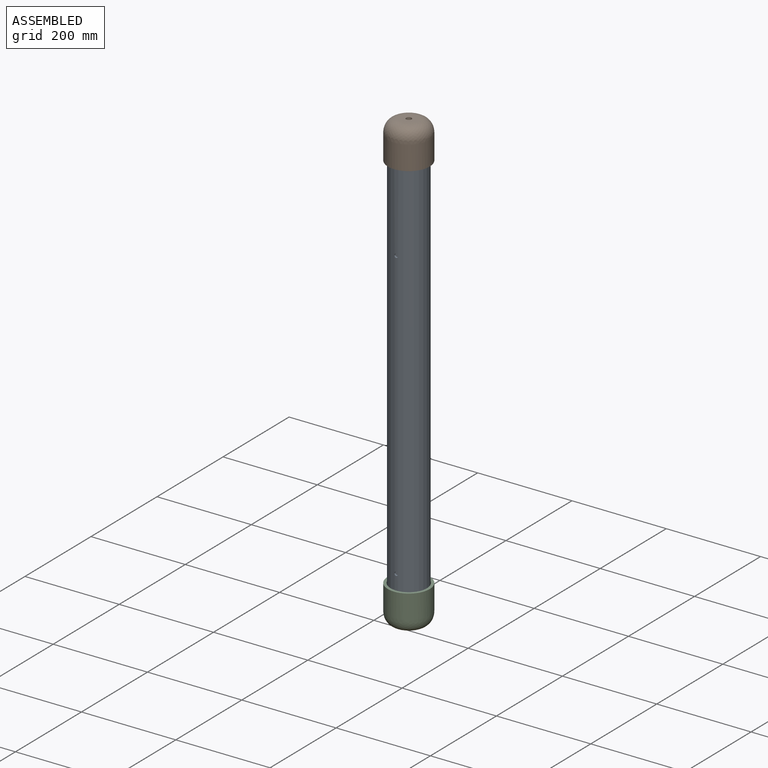
[diagram: assembled view]
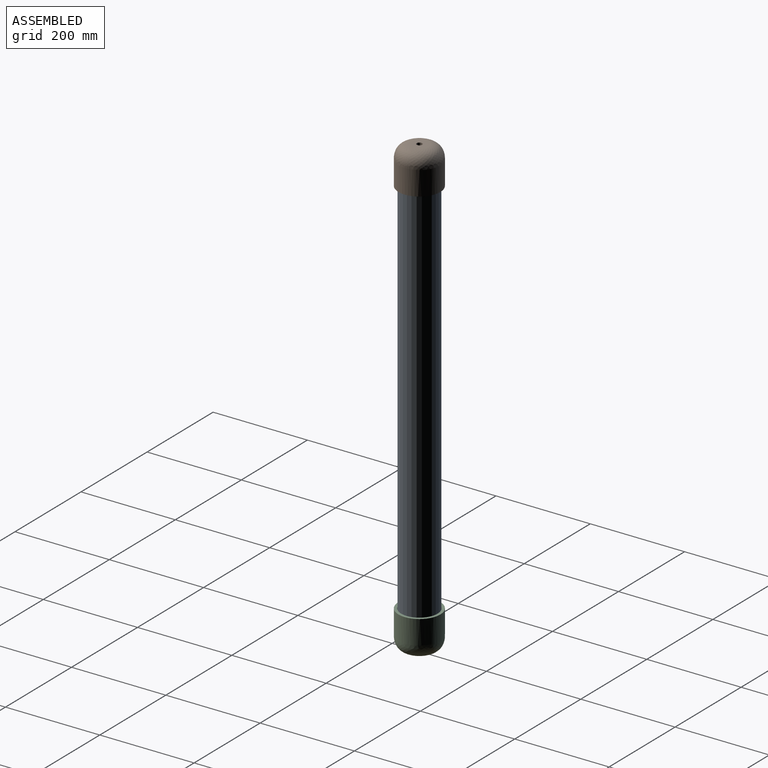
[diagram: assembled view, second angle]
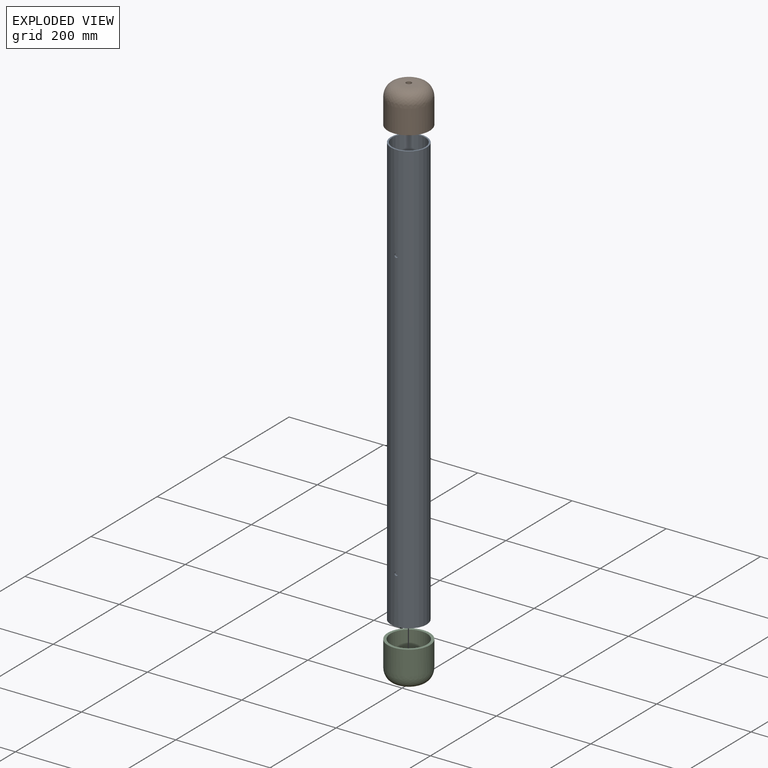
[diagram: exploded view]
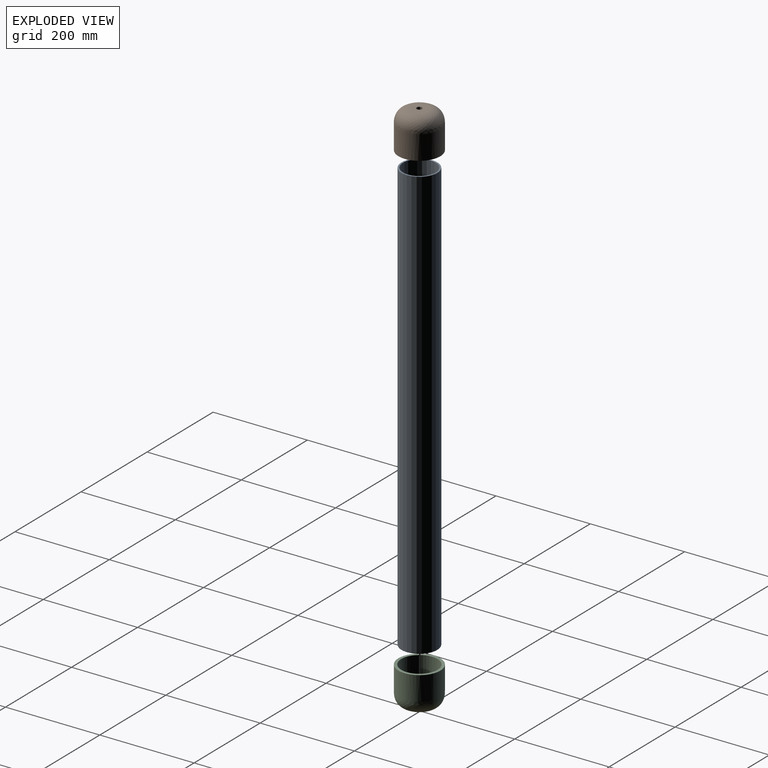
[diagram: exploded view, second angle]
ASSEMBLY  parts=3 mates=2
PART A: 6 faces, bbox 76.2x76.2x914.4 mm
  f0: cylinder r=38.1mm len=914.4mm, axis (0,0,1), area 218798mm2, adj f2,f3,f4,f5
  f1: cylinder r=34.92mm len=914.4mm, axis (0,0,1), area 200556.5mm2, adj f2,f3,f4,f5
  f2: plane 76.2x76.2mm, normal (0,0,-1), area 728.4mm2, adj f0,f1
  f3: plane 76.2x76.2mm, normal (0,0,1), area 728.4mm2, adj f0,f1
  f4: cylinder r=3.97mm len=7.94mm, axis (0,1,0), area 79.4mm2, adj f0,f1
  f5: cylinder r=3.97mm len=7.94mm, axis (0,1,0), area 79.4mm2, adj f0,f1
PART B: 7 faces, bbox 88.9x88.9x80.2 mm
  f0: cylinder r=44.45mm len=88.9mm, axis (0,0,-1), area 14189.9mm2, adj f2,f5
  f1: plane 30.19x30.19mm, normal (0,0,1), area 611.2mm2, adj f5,f6
  f2: plane 88.9x88.9mm, normal (0,0,-1), area 1518.2mm2, adj f0,f3
  f3: cylinder r=38.63mm len=77.27mm, axis (0,0,-1), area 16912.3mm2, adj f2,f4
  f4: plane 77.27x77.27mm, normal (0,0,-1), area 4584.9mm2, adj f3,f6
  f5: bspline ~88.85x88.81mm, area 10337.5mm2, adj f0,f1
  f6: cylinder r=5.75mm len=11.51mm, axis (0,0,1), area 379.6mm2, adj f1,f4
PART C: same geometry as B
PLACE A t=(-189.48,-194.76,-47.1)mm
PLACE B t=(-189.48,-194.76,-81.94)mm
PLACE C rot(axis=(0,1,0),180deg) t=(-189.48,-194.76,-891.83)mm
MATE fastened A.f0 <-> B.f3  axis (0,0,1) through (-189.48,-194.76,-47.1)mm
MATE fastened C.f3 <-> A.f1  axis (0,0,1) through (-189.48,-194.76,-961.5)mm
